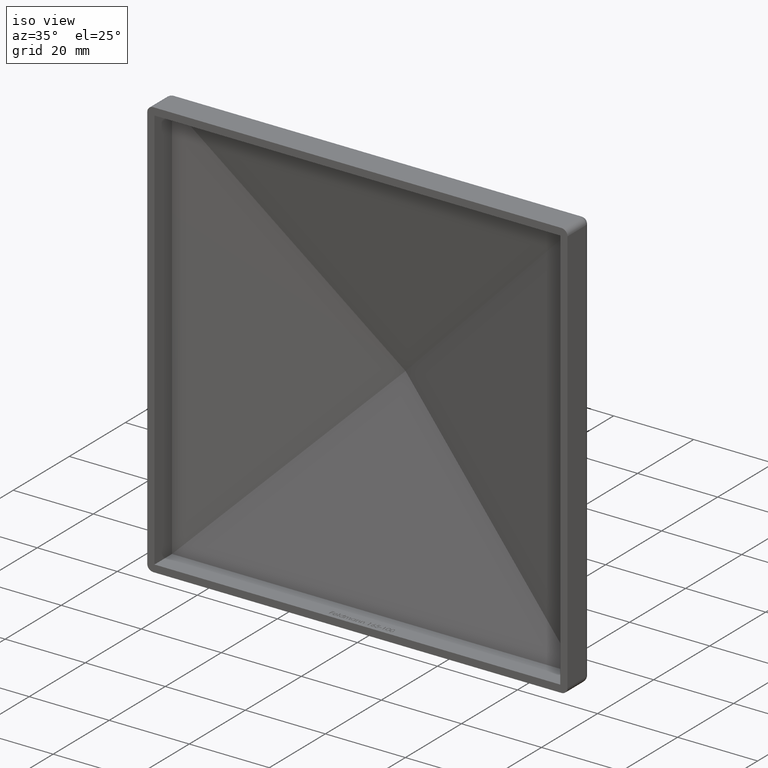
[diagram: clean part render]
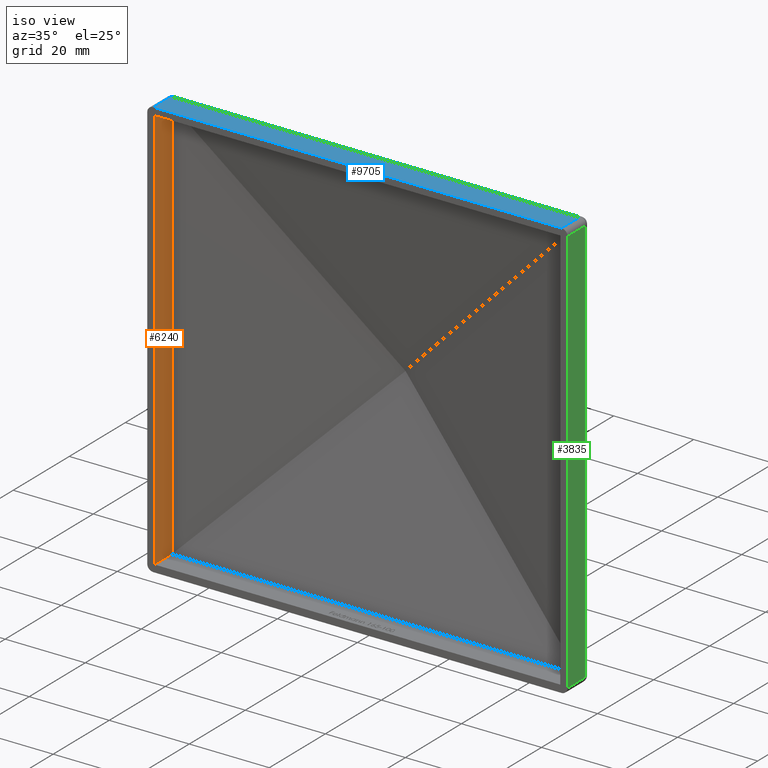
[diagram: same view with three faces highlighted in distinct colors, each labeled with its STEP entity id]
A machine part, iso view with three faces highlighted in distinct colors.
Their STEP definitions:

[orange] entity #6240 — the highlighted planar face has unit normal (1, 0, -0).
#52 = VERTEX_POINT ( 'NONE', #10845 ) ;
#144 = ORIENTED_EDGE ( 'NONE', *, *, #10783, .F. ) ;
#208 = LINE ( 'NONE', #7031, #6846 ) ;
#338 = EDGE_CURVE ( 'NONE', #5863, #2590, #8568, .T. ) ;
#580 = AXIS2_PLACEMENT_3D ( 'NONE', #3312, #1535, #11118 ) ;
#1084 = DIRECTION ( 'NONE',  ( -0.0000000000000000000, 1.000000000000000000, 0.0000000000000000000 ) ) ;
#1167 = LINE ( 'NONE', #9748, #3863 ) ;
#1323 = ORIENTED_EDGE ( 'NONE', *, *, #7478, .T. ) ;
#1413 = CARTESIAN_POINT ( 'NONE',  ( -50.69999999999998200, 0.0000000000000000000, 50.70000000000000300 ) ) ;
#1535 = DIRECTION ( 'NONE',  ( 1.000000000000000000, 0.0000000000000000000, -1.982541115402065400E-016 ) ) ;
#1629 = FACE_OUTER_BOUND ( 'NONE', #8348, .T. ) ;
#1838 = DIRECTION ( 'NONE',  ( 1.982541115402065400E-016, 4.276069072435822300E-017, 1.000000000000000000 ) ) ;
#2431 = CARTESIAN_POINT ( 'NONE',  ( -50.69999999999998900, 6.257807118570696900, 50.69999999999999600 ) ) ;
#2590 = VERTEX_POINT ( 'NONE', #1413 ) ;
#2911 = DIRECTION ( 'NONE',  ( 1.982541115402065400E-016, -0.0000000000000000000, 1.000000000000000000 ) ) ;
#3015 = EDGE_CURVE ( 'NONE', #52, #9831, #1167, .T. ) ;
#3312 = CARTESIAN_POINT ( 'NONE',  ( -50.70000000000000300, 19.00000000000000000, -52.49999999999999300 ) ) ;
#3720 = CARTESIAN_POINT ( 'NONE',  ( -50.69999999999998200, 19.00000000000000000, 50.69999999999999600 ) ) ;
#3863 = VECTOR ( 'NONE', #1838, 1000.000000000000000 ) ;
#4781 = PLANE ( 'NONE',  #580 ) ;
#4964 = VECTOR ( 'NONE', #7115, 1000.000000000000000 ) ;
#5863 = VERTEX_POINT ( 'NONE', #7609 ) ;
#6041 = ORIENTED_EDGE ( 'NONE', *, *, #338, .F. ) ;
#6240 = ADVANCED_FACE ( 'NONE', ( #1629 ), #4781, .T. ) ;
#6846 = VECTOR ( 'NONE', #1084, 1000.000000000000000 ) ;
#7031 = CARTESIAN_POINT ( 'NONE',  ( -50.70000000000000300, 19.00000000000000000, -50.69999999999998900 ) ) ;
#7115 = DIRECTION ( 'NONE',  ( 0.0000000000000000000, 1.000000000000000000, 0.0000000000000000000 ) ) ;
#7478 = EDGE_CURVE ( 'NONE', #5863, #52, #208, .T. ) ;
#7609 = CARTESIAN_POINT ( 'NONE',  ( -50.70000000000000300, 0.0000000000000000000, -50.69999999999998900 ) ) ;
#7643 = LINE ( 'NONE', #3720, #4964 ) ;
#8348 = EDGE_LOOP ( 'NONE', ( #6041, #1323, #8691, #144 ) ) ;
#8568 = LINE ( 'NONE', #9062, #10874 ) ;
#8691 = ORIENTED_EDGE ( 'NONE', *, *, #3015, .T. ) ;
#9062 = CARTESIAN_POINT ( 'NONE',  ( -50.70000000000000300, 0.0000000000000000000, -52.49999999999999300 ) ) ;
#9748 = CARTESIAN_POINT ( 'NONE',  ( -50.70000000000000300, 6.257807118570694300, -52.49999999999999300 ) ) ;
#9831 = VERTEX_POINT ( 'NONE', #2431 ) ;
#10783 = EDGE_CURVE ( 'NONE', #2590, #9831, #7643, .T. ) ;
#10845 = CARTESIAN_POINT ( 'NONE',  ( -50.70000000000001000, 6.257807118570694300, -50.69999999999998900 ) ) ;
#10874 = VECTOR ( 'NONE', #2911, 1000.000000000000000 ) ;
#11118 = DIRECTION ( 'NONE',  ( -1.982541115402065400E-016, 0.0000000000000000000, -1.000000000000000000 ) ) ;

[blue] entity #9705 — the highlighted planar face has unit normal (0, 0, -1).
#1262 = PLANE ( 'NONE',  #4629 ) ;
#1674 = ORIENTED_EDGE ( 'NONE', *, *, #8810, .T. ) ;
#2204 = LINE ( 'NONE', #5794, #3952 ) ;
#2206 = DIRECTION ( 'NONE',  ( -1.000000000000000000, 0.0000000000000000000, -0.0000000000000000000 ) ) ;
#2770 = ORIENTED_EDGE ( 'NONE', *, *, #4742, .T. ) ;
#2811 = VERTEX_POINT ( 'NONE', #7119 ) ;
#2996 = DIRECTION ( 'NONE',  ( 0.0000000000000000000, 0.0000000000000000000, -1.000000000000000000 ) ) ;
#3077 = CARTESIAN_POINT ( 'NONE',  ( -50.99999999999998600, 0.0000000000000000000, 52.50000000000000700 ) ) ;
#3291 = DIRECTION ( 'NONE',  ( -0.0000000000000000000, 1.000000000000000000, -0.0000000000000000000 ) ) ;
#3336 = VERTEX_POINT ( 'NONE', #9403 ) ;
#3489 = CARTESIAN_POINT ( 'NONE',  ( -50.99999999999998600, 19.00000000000000000, 52.50000000000000700 ) ) ;
#3842 = LINE ( 'NONE', #5007, #9683 ) ;
#3952 = VECTOR ( 'NONE', #8661, 1000.000000000000000 ) ;
#4584 = ORIENTED_EDGE ( 'NONE', *, *, #8721, .T. ) ;
#4629 = AXIS2_PLACEMENT_3D ( 'NONE', #9957, #2996, #2206 ) ;
#4742 = EDGE_CURVE ( 'NONE', #3336, #2811, #3842, .T. ) ;
#5007 = CARTESIAN_POINT ( 'NONE',  ( 51.00000000000000700, 19.00000000000000000, 52.50000000000000700 ) ) ;
#5262 = FACE_OUTER_BOUND ( 'NONE', #10803, .T. ) ;
#5311 = DIRECTION ( 'NONE',  ( 0.0000000000000000000, -1.000000000000000000, 0.0000000000000000000 ) ) ;
#5794 = CARTESIAN_POINT ( 'NONE',  ( 52.50000000000004300, 6.500000000000000000, 52.50000000000000700 ) ) ;
#5864 = VECTOR ( 'NONE', #5311, 1000.000000000000000 ) ;
#6388 = CARTESIAN_POINT ( 'NONE',  ( -52.49999999999998600, 0.0000000000000000000, 52.50000000000000700 ) ) ;
#6903 = EDGE_CURVE ( 'NONE', #2811, #9704, #2204, .T. ) ;
#7119 = CARTESIAN_POINT ( 'NONE',  ( 51.00000000000000700, 6.500000000000000000, 52.50000000000000700 ) ) ;
#7592 = VECTOR ( 'NONE', #8121, 1000.000000000000000 ) ;
#8121 = DIRECTION ( 'NONE',  ( 1.000000000000000000, 0.0000000000000000000, 0.0000000000000000000 ) ) ;
#8661 = DIRECTION ( 'NONE',  ( -1.000000000000000000, -0.0000000000000000000, 2.220446049250313100E-016 ) ) ;
#8721 = EDGE_CURVE ( 'NONE', #9704, #9707, #9784, .T. ) ;
#8810 = EDGE_CURVE ( 'NONE', #9707, #3336, #10862, .T. ) ;
#9403 = CARTESIAN_POINT ( 'NONE',  ( 51.00000000000000700, 0.0000000000000000000, 52.50000000000000700 ) ) ;
#9683 = VECTOR ( 'NONE', #3291, 1000.000000000000000 ) ;
#9704 = VERTEX_POINT ( 'NONE', #10954 ) ;
#9705 = ADVANCED_FACE ( 'NONE', ( #5262 ), #1262, .F. ) ;
#9707 = VERTEX_POINT ( 'NONE', #3077 ) ;
#9784 = LINE ( 'NONE', #3489, #5864 ) ;
#9957 = CARTESIAN_POINT ( 'NONE',  ( -52.49999999999998600, 19.00000000000000000, 52.50000000000000700 ) ) ;
#10313 = ORIENTED_EDGE ( 'NONE', *, *, #6903, .T. ) ;
#10803 = EDGE_LOOP ( 'NONE', ( #10313, #4584, #1674, #2770 ) ) ;
#10862 = LINE ( 'NONE', #6388, #7592 ) ;
#10954 = CARTESIAN_POINT ( 'NONE',  ( -50.99999999999995700, 6.500000000000000000, 52.50000000000002800 ) ) ;

[green] entity #3835 — the highlighted planar face has unit normal (-1, 0, 0).
#165 = FACE_OUTER_BOUND ( 'NONE', #10466, .T. ) ;
#475 = VECTOR ( 'NONE', #7258, 1000.000000000000000 ) ;
#632 = EDGE_CURVE ( 'NONE', #3208, #10350, #979, .T. ) ;
#688 = LINE ( 'NONE', #6452, #9762 ) ;
#754 = CARTESIAN_POINT ( 'NONE',  ( 52.50000000000001400, 0.0000000000000000000, 51.00000000000000700 ) ) ;
#979 = LINE ( 'NONE', #3878, #3006 ) ;
#1246 = DIRECTION ( 'NONE',  ( -0.0000000000000000000, -0.0000000000000000000, 1.000000000000000000 ) ) ;
#1425 = PLANE ( 'NONE',  #6281 ) ;
#2098 = ORIENTED_EDGE ( 'NONE', *, *, #6757, .T. ) ;
#2406 = DIRECTION ( 'NONE',  ( 6.608470384673550800E-017, 0.0000000000000000000, 1.000000000000000000 ) ) ;
#2437 = DIRECTION ( 'NONE',  ( 0.0000000000000000000, -1.000000000000000000, 0.0000000000000000000 ) ) ;
#2620 = ORIENTED_EDGE ( 'NONE', *, *, #3145, .T. ) ;
#2897 = LINE ( 'NONE', #3251, #6141 ) ;
#3006 = VECTOR ( 'NONE', #1246, 1000.000000000000000 ) ;
#3027 = DIRECTION ( 'NONE',  ( -6.608470384673550800E-017, -0.0000000000000000000, -1.000000000000000000 ) ) ;
#3145 = EDGE_CURVE ( 'NONE', #10469, #3208, #7223, .T. ) ;
#3208 = VERTEX_POINT ( 'NONE', #8258 ) ;
#3251 = CARTESIAN_POINT ( 'NONE',  ( 52.50000000000001400, 19.00000000000000000, 51.00000000000000700 ) ) ;
#3382 = EDGE_CURVE ( 'NONE', #10350, #5869, #2897, .T. ) ;
#3835 = ADVANCED_FACE ( 'NONE', ( #165 ), #1425, .F. ) ;
#3878 = CARTESIAN_POINT ( 'NONE',  ( 52.50000000000002100, 6.500000000000000000, -52.49999999999999300 ) ) ;
#5610 = CARTESIAN_POINT ( 'NONE',  ( 52.50000000000000700, 19.00000000000000000, -50.99999999999999300 ) ) ;
#5679 = CARTESIAN_POINT ( 'NONE',  ( 52.50000000000000700, 0.0000000000000000000, -50.99999999999999300 ) ) ;
#5869 = VERTEX_POINT ( 'NONE', #754 ) ;
#6141 = VECTOR ( 'NONE', #2437, 1000.000000000000000 ) ;
#6281 = AXIS2_PLACEMENT_3D ( 'NONE', #8499, #6762, #2406 ) ;
#6452 = CARTESIAN_POINT ( 'NONE',  ( 52.50000000000000700, 0.0000000000000000000, -52.49999999999999300 ) ) ;
#6757 = EDGE_CURVE ( 'NONE', #5869, #10469, #688, .T. ) ;
#6762 = DIRECTION ( 'NONE',  ( -1.000000000000000000, 0.0000000000000000000, 6.608470384673550800E-017 ) ) ;
#7223 = LINE ( 'NONE', #5610, #475 ) ;
#7258 = DIRECTION ( 'NONE',  ( -0.0000000000000000000, 1.000000000000000000, -0.0000000000000000000 ) ) ;
#7415 = CARTESIAN_POINT ( 'NONE',  ( 52.50000000000002100, 6.500000000000000000, 51.00000000000000700 ) ) ;
#8258 = CARTESIAN_POINT ( 'NONE',  ( 52.50000000000002100, 6.500000000000000000, -50.99999999999999300 ) ) ;
#8499 = CARTESIAN_POINT ( 'NONE',  ( 52.50000000000000700, 19.00000000000000000, -52.49999999999999300 ) ) ;
#8573 = ORIENTED_EDGE ( 'NONE', *, *, #632, .T. ) ;
#9477 = ORIENTED_EDGE ( 'NONE', *, *, #3382, .T. ) ;
#9762 = VECTOR ( 'NONE', #3027, 1000.000000000000000 ) ;
#10350 = VERTEX_POINT ( 'NONE', #7415 ) ;
#10466 = EDGE_LOOP ( 'NONE', ( #2098, #2620, #8573, #9477 ) ) ;
#10469 = VERTEX_POINT ( 'NONE', #5679 ) ;